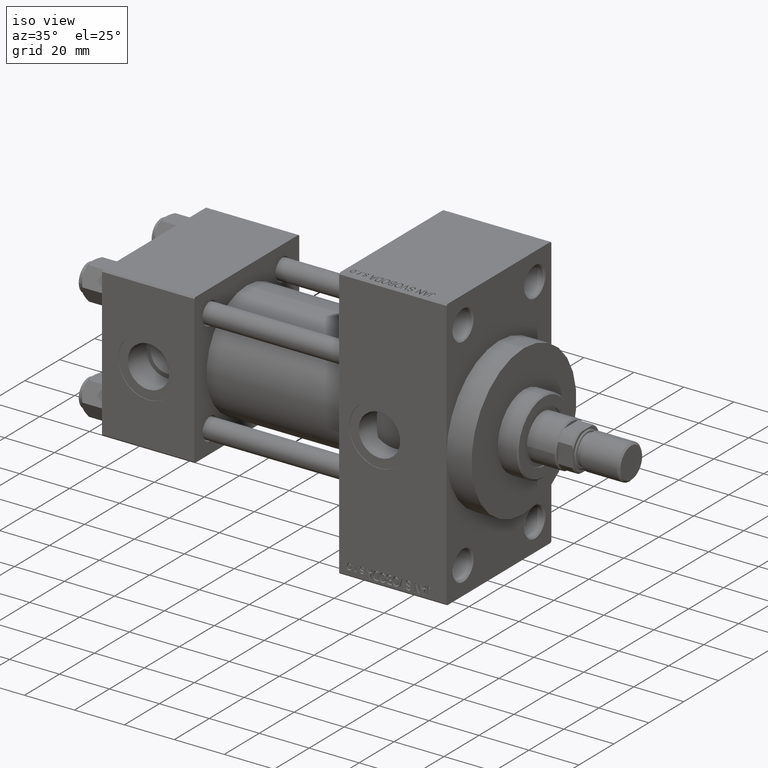
[diagram: clean part render]
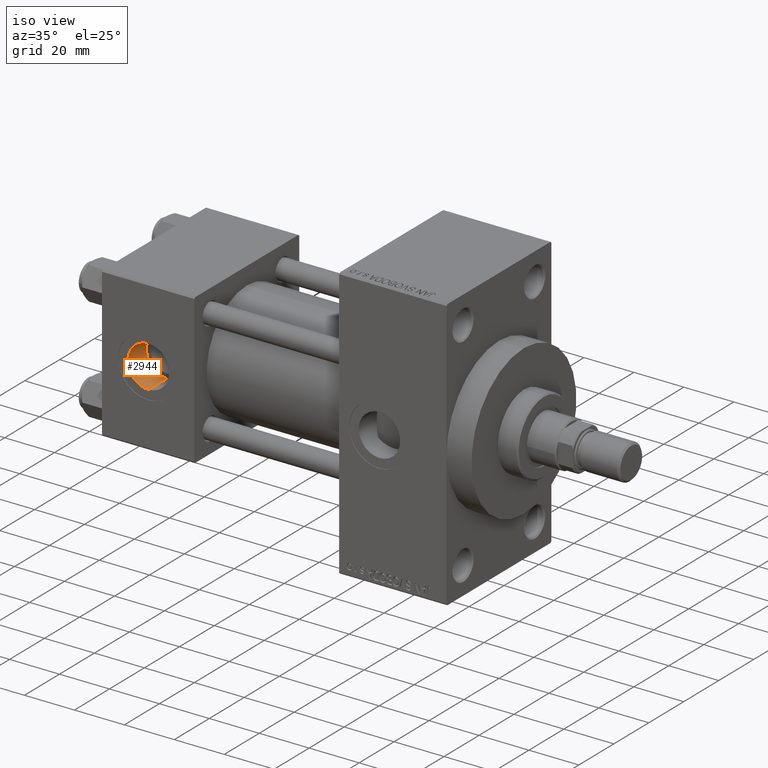
[diagram: same view with one face highlighted and labeled with its STEP entity id]
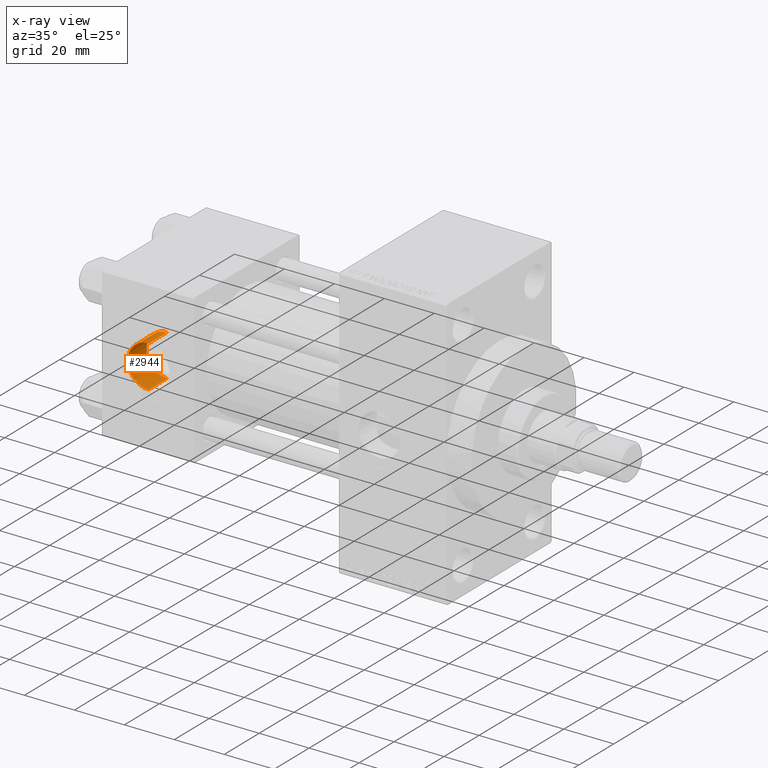
[diagram: x-ray of the same camera — body ghosted, the highlighted face saturated]
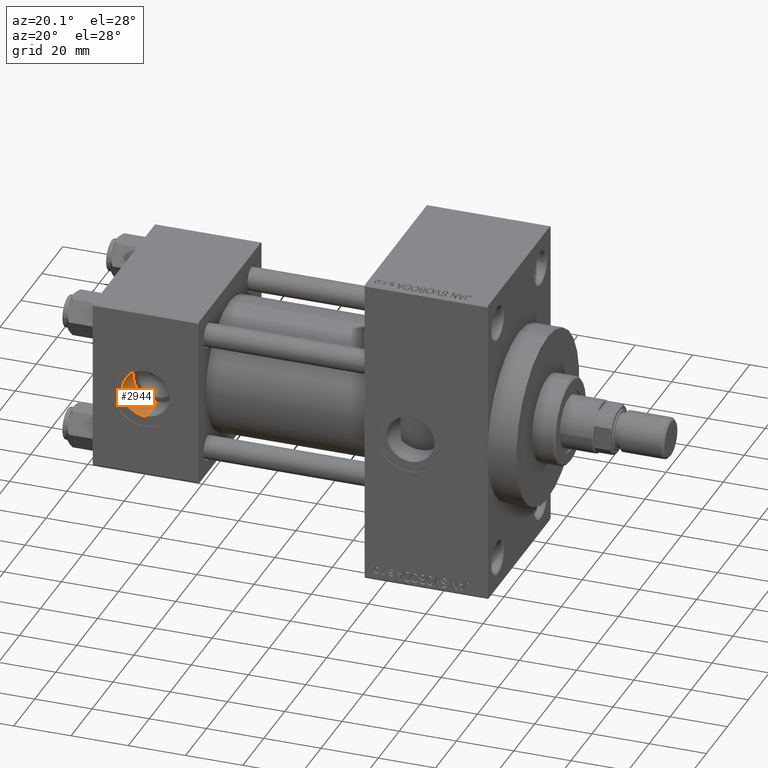
[diagram: same view with one face highlighted and labeled with its STEP entity id]
A machine part, iso view. The second image highlights one B-rep face of the part: STEP entity #2944.
The next image is the same camera in x-ray: the body ghosted, the highlighted face saturated — about 0% of this face is hidden behind the body in this view.
A second angle (auxiliary view) of the same face is appended — the face is thin or edge-on in the first view.
In plain terms, the highlighted cylindrical surface (edge-blend (fillet) strip) has radius 8.33 mm, axis along (-0, -1, -0).
Its self-contained STEP definition (entity closure, byte-faithful):
#714 = ORIENTED_EDGE ( 'NONE', *, *, #6606, .F. ) ;
#2944 = ADVANCED_FACE ( 'NONE', ( #4728 ), #5471, .F. ) ;
#3074 = LINE ( 'NONE', #45346, #37859 ) ;
#4728 = FACE_OUTER_BOUND ( 'NONE', #16929, .T. ) ;
#5471 = CYLINDRICAL_SURFACE ( 'NONE', #34818, 8.330000000000001847 ) ;
#5999 = VERTEX_POINT ( 'NONE', #43888 ) ;
#6265 = EDGE_CURVE ( 'NONE', #5999, #38429, #11121, .T. ) ;
#6507 = DIRECTION ( 'NONE',  ( 0.000000000000000000, 0.000000000000000000, -1.000000000000000000 ) ) ;
#6606 = EDGE_CURVE ( 'NONE', #38429, #8648, #28266, .T. ) ;
#7631 = CARTESIAN_POINT ( 'NONE',  ( 18.50000000000000000, -29.80000000000000071, -8.330000000000001847 ) ) ;
#8648 = VERTEX_POINT ( 'NONE', #7631 ) ;
#9294 = DIRECTION ( 'NONE',  ( 0.000000000000000000, -1.000000000000000000, -8.673617379884036705E-17 ) ) ;
#9500 = AXIS2_PLACEMENT_3D ( 'NONE', #43772, #9294, #6507 ) ;
#9900 = CARTESIAN_POINT ( 'NONE',  ( 18.50000000000000000, -19.09999999999999787, -8.330000000000000071 ) ) ;
#11121 = CIRCLE ( 'NONE', #9500, 8.330000000000001847 ) ;
#11366 = CARTESIAN_POINT ( 'NONE',  ( 18.50000000000000000, -29.80000000000000071, 1.734723475976808635E-17 ) ) ;
#12175 = ORIENTED_EDGE ( 'NONE', *, *, #6265, .F. ) ;
#16929 = EDGE_LOOP ( 'NONE', ( #12175, #44441, #24871, #714 ) ) ;
#17026 = CARTESIAN_POINT ( 'NONE',  ( 18.50000000000000000, -19.09999999999999787, 9.454242944073598665E-16 ) ) ;
#19404 = DIRECTION ( 'NONE',  ( 0.000000000000000000, -1.000000000000000000, -8.673617379884036705E-17 ) ) ;
#20002 = CARTESIAN_POINT ( 'NONE',  ( 18.50000000000000000, -19.09999999999999787, -8.330000000000000071 ) ) ;
#22590 = CARTESIAN_POINT ( 'NONE',  ( 18.50000000000000000, -29.80000000000000071, 8.330000000000001847 ) ) ;
#23181 = DIRECTION ( 'NONE',  ( 0.000000000000000000, 0.000000000000000000, -1.000000000000000000 ) ) ;
#24085 = VERTEX_POINT ( 'NONE', #22590 ) ;
#24871 = ORIENTED_EDGE ( 'NONE', *, *, #40974, .T. ) ;
#28266 = LINE ( 'NONE', #9900, #41654 ) ;
#29632 = CIRCLE ( 'NONE', #46450, 8.330000000000001847 ) ;
#34818 = AXIS2_PLACEMENT_3D ( 'NONE', #17026, #48486, #47986 ) ;
#36804 = DIRECTION ( 'NONE',  ( -0.000000000000000000, -1.000000000000000000, -8.673617379884036705E-17 ) ) ;
#37859 = VECTOR ( 'NONE', #36804, 1000.000000000000000 ) ;
#38429 = VERTEX_POINT ( 'NONE', #20002 ) ;
#40974 = EDGE_CURVE ( 'NONE', #24085, #8648, #29632, .T. ) ;
#41654 = VECTOR ( 'NONE', #44364, 1000.000000000000000 ) ;
#43772 = CARTESIAN_POINT ( 'NONE',  ( 18.50000000000000000, -19.09999999999999787, 9.454242944073598665E-16 ) ) ;
#43888 = CARTESIAN_POINT ( 'NONE',  ( 18.50000000000000000, -19.09999999999999787, 8.330000000000003624 ) ) ;
#44364 = DIRECTION ( 'NONE',  ( -0.000000000000000000, -1.000000000000000000, -8.673617379884036705E-17 ) ) ;
#44441 = ORIENTED_EDGE ( 'NONE', *, *, #46159, .T. ) ;
#45346 = CARTESIAN_POINT ( 'NONE',  ( 18.50000000000000000, -19.09999999999999787, 8.330000000000003624 ) ) ;
#46159 = EDGE_CURVE ( 'NONE', #5999, #24085, #3074, .T. ) ;
#46450 = AXIS2_PLACEMENT_3D ( 'NONE', #11366, #19404, #23181 ) ;
#47986 = DIRECTION ( 'NONE',  ( 0.000000000000000000, 0.000000000000000000, -1.000000000000000000 ) ) ;
#48486 = DIRECTION ( 'NONE',  ( -0.000000000000000000, -1.000000000000000000, -8.673617379884036705E-17 ) ) ;